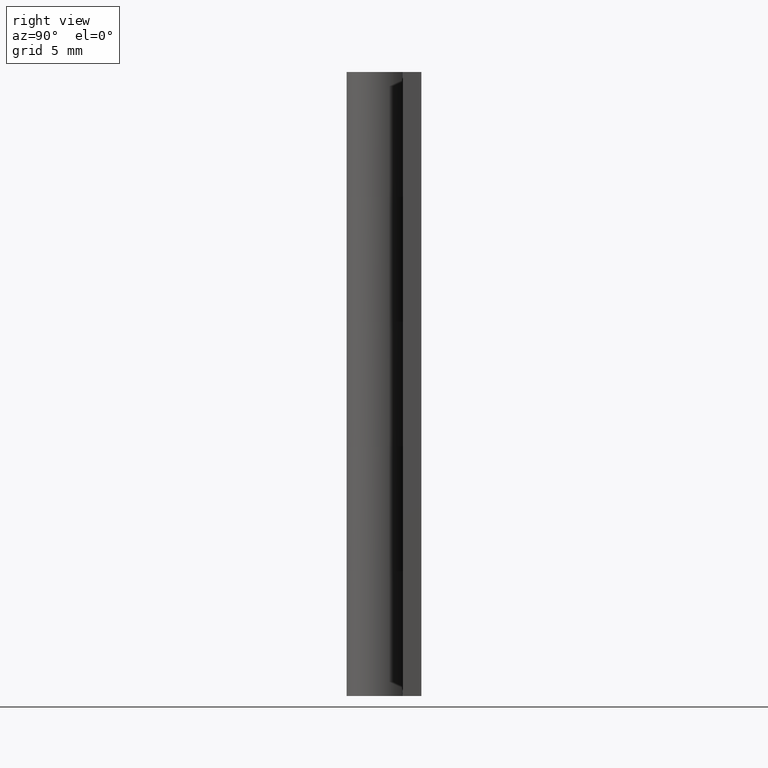
[diagram: clean part render]
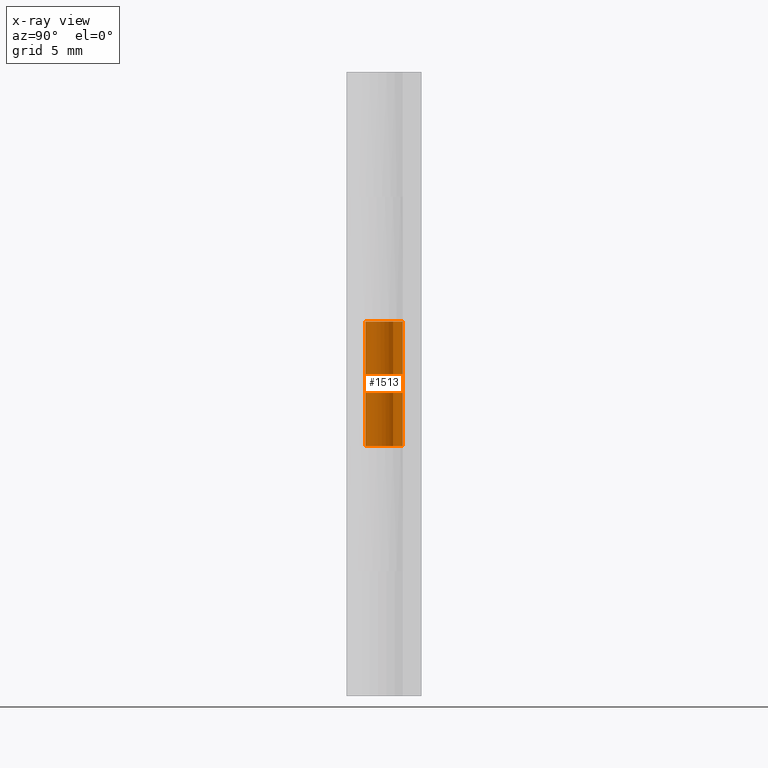
[diagram: x-ray — body ghosted, one internal face saturated and labeled with its STEP entity id]
A machine part, right view, then the same camera in x-ray: the body is ghosted and one INTERNAL B-rep face — a face not visible from any outside direction — is saturated and labeled: STEP entity #1513.
In plain terms, the highlighted face is a freeform B-spline surface patch.
Its self-contained STEP definition (entity closure, byte-faithful):
#766=CARTESIAN_POINT('',(0.0,1.500000000000000,20.0));
#767=VERTEX_POINT('',#766);
#768=CARTESIAN_POINT('',(1.313154598666890,0.725000000000000,20.0));
#769=VERTEX_POINT('',#768);
#770=CARTESIAN_POINT('',(0.0,1.500000000000000,20.0));
#771=CARTESIAN_POINT('',(-1.145299021212404,1.500000000000001,20.0));
#772=CARTESIAN_POINT('',(-1.447014444021651,0.395157182387862,20.0));
#773=CARTESIAN_POINT('',(-1.748729866830897,-0.709685635224275,20.0));
#774=CARTESIAN_POINT('',(-0.762397534098847,-1.291801068276381,20.0));
#775=CARTESIAN_POINT('',(0.223934798633204,-1.873916501328487,20.0));
#776=CARTESIAN_POINT('',(1.045325295443044,-1.075776476182164,20.0));
#777=CARTESIAN_POINT('',(1.866715792252885,-0.277636451035840,20.0));
#778=CARTESIAN_POINT('',(1.313154598666891,0.724999999999998,20.0));
#786=(BOUNDED_CURVE()B_SPLINE_CURVE(2,(#770,#771,#772,#773,#774,#775,#776,#777,#778),.UNSPECIFIED.,.F.,.U.)B_SPLINE_CURVE_WITH_KNOTS((3,2,2,2,3),(0.0,0.250000000000000,0.500000000000000,0.750000000000000,1.0),.UNSPECIFIED.)CURVE()GEOMETRIC_REPRESENTATION_ITEM()RATIONAL_B_SPLINE_CURVE((1.0,0.794807562115481,1.0,0.794807562115481,1.0,0.794807562115481,1.0,0.794807562115481,1.0))REPRESENTATION_ITEM(''));
#787=EDGE_CURVE('',#767,#769,#786,.T.);
#979=CARTESIAN_POINT('',(1.313154598666890,0.725000000000000,30.0));
#980=VERTEX_POINT('',#979);
#986=CARTESIAN_POINT('',(0.0,1.500000000000000,30.0));
#987=VERTEX_POINT('',#986);
#988=CARTESIAN_POINT('',(1.313154598666890,0.725000000000000,30.0));
#989=CARTESIAN_POINT('',(1.866715792252885,-0.277636451035838,30.000000000000007));
#990=CARTESIAN_POINT('',(1.045325295443045,-1.075776476182162,30.0));
#991=CARTESIAN_POINT('',(0.223934798633207,-1.873916501328486,30.000000000000007));
#992=CARTESIAN_POINT('',(-0.762397534098844,-1.291801068276382,30.0));
#993=CARTESIAN_POINT('',(-1.748729866830896,-0.709685635224277,30.000000000000007));
#994=CARTESIAN_POINT('',(-1.447014444021651,0.395157182387861,30.0));
#995=CARTESIAN_POINT('',(-1.145299021212405,1.500000000000000,30.000000000000007));
#996=CARTESIAN_POINT('',(0.0,1.500000000000000,30.0));
#1004=(BOUNDED_CURVE()B_SPLINE_CURVE(2,(#988,#989,#990,#991,#992,#993,#994,#995,#996),.UNSPECIFIED.,.F.,.U.)B_SPLINE_CURVE_WITH_KNOTS((3,2,2,2,3),(0.0,0.250000000000000,0.500000000000000,0.750000000000000,1.0),.UNSPECIFIED.)CURVE()GEOMETRIC_REPRESENTATION_ITEM()RATIONAL_B_SPLINE_CURVE((1.0,0.794807562115481,1.0,0.794807562115481,1.0,0.794807562115481,1.0,0.794807562115481,1.0))REPRESENTATION_ITEM(''));
#1005=EDGE_CURVE('',#980,#987,#1004,.T.);
#1456=CARTESIAN_POINT('',(1.313154598666890,0.725000000000000,30.0));
#1457=CARTESIAN_POINT('',(1.313154598666890,0.725000000000000,20.0));
#1458=QUASI_UNIFORM_CURVE('',1,(#1456,#1457),.UNSPECIFIED.,.F.,.U.);
#1459=EDGE_CURVE('',#980,#769,#1458,.T.);
#1481=CARTESIAN_POINT('',(0.013089803247560,1.499942884596257,30.250000000000000));
#1482=CARTESIAN_POINT('',(0.013089803247560,1.499942884596257,19.743749999999999));
#1483=CARTESIAN_POINT('',(-1.795740308696874,1.515728305839138,30.250000000000011));
#1484=CARTESIAN_POINT('',(-1.795740308696874,1.515728305839138,19.743750000000002));
#1485=CARTESIAN_POINT('',(-1.476447697697894,-0.264768192883109,30.250000000000000));
#1486=CARTESIAN_POINT('',(-1.476447697697894,-0.264768192883109,19.743749999999999));
#1487=CARTESIAN_POINT('',(-1.157155086698915,-2.045264691605356,30.250000000000011));
#1488=CARTESIAN_POINT('',(-1.157155086698915,-2.045264691605356,19.743750000000002));
#1489=CARTESIAN_POINT('',(0.533476142722314,-1.401928388023483,30.250000000000000));
#1490=CARTESIAN_POINT('',(0.533476142722314,-1.401928388023483,19.743749999999999));
#1491=CARTESIAN_POINT('',(2.224107372143544,-0.758592084441610,30.250000000000011));
#1492=CARTESIAN_POINT('',(2.224107372143544,-0.758592084441610,19.743750000000002));
#1493=CARTESIAN_POINT('',(1.278960246531139,0.783747847073922,30.250000000000000));
#1494=CARTESIAN_POINT('',(1.278960246531139,0.783747847073922,19.743749999999999));
#1502=(BOUNDED_SURFACE()B_SPLINE_SURFACE(1,2,((#1481,#1483,#1485,#1487,#1489,#1491,#1493),(#1482,#1484,#1486,#1488,#1490,#1492,#1494)),.UNSPECIFIED.,.F.,.F.,.U.)B_SPLINE_SURFACE_WITH_KNOTS((2,2),(3,2,2,3),(0.0,10.506250000000010),(0.0,2.819123256080202,5.638246512160404,8.457369768240607),.UNSPECIFIED.)GEOMETRIC_REPRESENTATION_ITEM()RATIONAL_B_SPLINE_SURFACE(((1.0,0.638320090924328,1.0,0.638320090924328,1.0,0.638320090924328,1.0),(1.0,0.638320090924328,1.0,0.638320090924328,1.0,0.638320090924328,1.0)))REPRESENTATION_ITEM('')SURFACE());
#1503=ORIENTED_EDGE('',*,*,#787,.F.);
#1504=CARTESIAN_POINT('',(0.0,1.500000000000000,30.0));
#1505=CARTESIAN_POINT('',(0.0,1.500000000000000,20.0));
#1506=QUASI_UNIFORM_CURVE('',1,(#1504,#1505),.UNSPECIFIED.,.F.,.U.);
#1507=EDGE_CURVE('',#987,#767,#1506,.T.);
#1508=ORIENTED_EDGE('',*,*,#1507,.F.);
#1509=ORIENTED_EDGE('',*,*,#1005,.F.);
#1510=ORIENTED_EDGE('',*,*,#1459,.T.);
#1511=EDGE_LOOP('',(#1503,#1508,#1509,#1510));
#1512=FACE_OUTER_BOUND('',#1511,.T.);
#1513=ADVANCED_FACE('',(#1512),#1502,.F.);